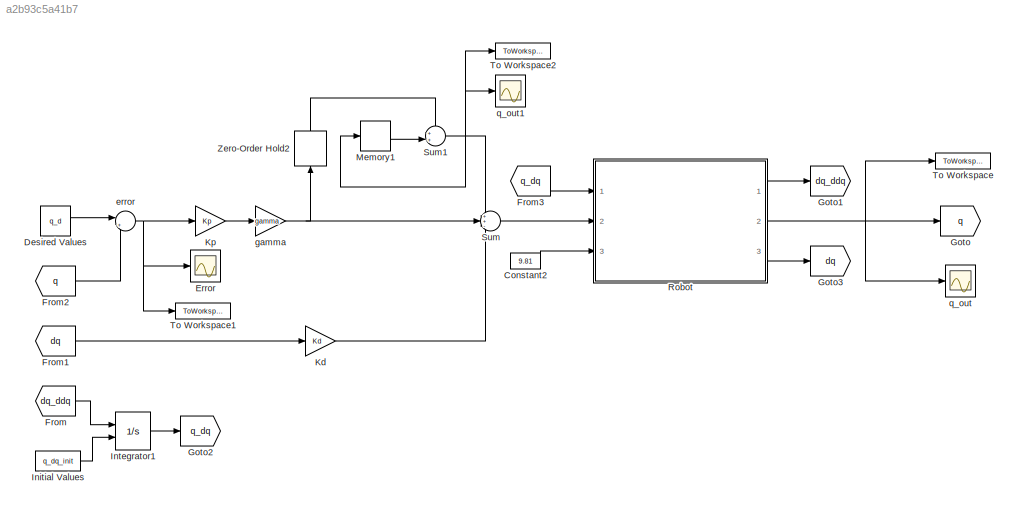
MODEL slx_a2b93c5a41b7
KIND model
CONFIG AbsTol = auto
CONFIG EnableMultiTasking = off
CONFIG FixedStep = auto
CONFIG MaxStep = auto
CONFIG MinStep = auto
CONFIG RelTol = 1e-3
CONFIG SampleTimeConstraint = Unconstrained
CONFIG SolverName = VariableStepAuto
CONFIG StartTime = 0.0
CONFIG StopTime = 15
BLOCK [Constant] Constant2
  Value = 9.81
BLOCK [Constant] Desired Values
  Value = q_d
BLOCK [Scope] Error
  Floating = off
  NumInputPorts = 1
  Ports = [1]
  ScopeSpecificationString = Simulink.scopes.TimeScopeBlockCfg('CurrentConfiguration', extmgr.ConfigurationSet(extmgr.Configuration('Core','General UI',true,'FigureColor',[1 1 1]),extmgr.Configuration('Core','Source UI',true),extmgr.Configuration('Sources','WiredSimulink',true,'DataLoggingVariableName','ScopeData2'),extmgr.Configuration('Visuals','Time Domain',true,'SerializedDisplays',{struct('MinYLimReal','-1.28738','MaxYLi...<+1798ch>
BLOCK [From] From
  GotoTag = dq_ddq
BLOCK [From] From1
  GotoTag = dq
BLOCK [From] From2
  GotoTag = q
BLOCK [From] From3
  GotoTag = q_dq
BLOCK [Goto] Goto
  GotoTag = q
BLOCK [Goto] Goto1
  GotoTag = dq_ddq
BLOCK [Goto] Goto2
  GotoTag = q_dq
BLOCK [Goto] Goto3
  GotoTag = dq
BLOCK [Constant] Initial Values
  Value = q_dq_init
BLOCK [Integrator] Integrator1
  InitialConditionSource = external
  Ports = [2, 1]
BLOCK [Gain] Kd
  Gain = Kd
  Multiplication = Matrix(K*u)
BLOCK [Gain] Kp
  Gain = Kp
  Multiplication = Matrix(K*u)
BLOCK [Memory] Memory1
  InheritSampleTime = on
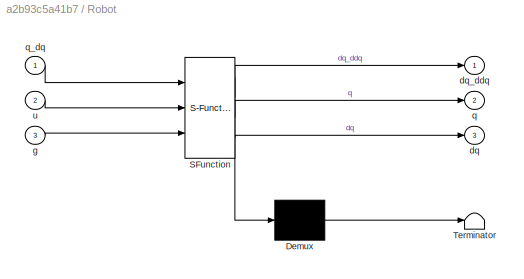
BLOCK [SubSystem] Robot
  ErrorFcn = Stateflow.Translate.translate
  PermitHierarchicalResolution = ExplicitOnly
  Ports = [3, 3]
  RequestExecContextInheritance = off
  SFBlockType = MATLAB Function
  TreatAsAtomicUnit = on
BLOCK [Demux] Robot/ Demux 
  Outputs = 1
  Ports = [1, 1]
BLOCK [S-Function] Robot/ SFunction 
  EnableBusSupport = on
  FunctionName = sf_sfun
  PortCounts = [3 4]
  Ports = [3, 4]
  SFcnIsStateOwnerBlock = off
  SFunctionDeploymentMode = off
  Tag = Stateflow S-Function 2
BLOCK [Terminator] Robot/ Terminator 
BLOCK [Outport] Robot/dq
  Port = 3
BLOCK [Outport] Robot/dq_ddq
BLOCK [Inport] Robot/g
  Port = 3
BLOCK [Outport] Robot/q
  Port = 2
BLOCK [Inport] Robot/q_dq
BLOCK [Inport] Robot/u
  Port = 2
BLOCK [Sum] Sum
  Inputs = ++-
  Ports = [3, 1]
BLOCK [Sum] Sum1
  Inputs = ++|
  Ports = [2, 1]
BLOCK [ToWorkspace] To Workspace
  FixptAsFi = on
  MaxDataPoints = inf
  Ports = [1]
  SampleTime = -1
  VariableName = q
BLOCK [ToWorkspace] To Workspace1
  FixptAsFi = on
  MaxDataPoints = inf
  Ports = [1]
  SampleTime = -1
  VariableName = error
BLOCK [ToWorkspace] To Workspace2
  FixptAsFi = on
  MaxDataPoints = inf
  Ports = [1]
  SampleTime = -1
  VariableName = update
BLOCK [ZeroOrderHold] Zero-Order Hold2
  NameLocation = right
  SampleTime = 2
BLOCK [Sum] error
  Inputs = |+-
  Ports = [2, 1]
BLOCK [Gain] gamma
  Gain = gamma
BLOCK [Scope] q_out
  Floating = off
  NumInputPorts = 1
  Ports = [1]
  ScopeSpecificationString = Simulink.scopes.TimeScopeBlockCfg('CurrentConfiguration', extmgr.ConfigurationSet(extmgr.Configuration('Core','General UI',true,'FigureColor',[1 1 1]),extmgr.Configuration('Core','Source UI',true),extmgr.Configuration('Sources','WiredSimulink',true),extmgr.Configuration('Visuals','Time Domain',true,'SerializedDisplays',{struct('MinYLimReal','1.09546','MaxYLimReal','1.97384','YLabelReal','','MinYLi...<+1769ch>
BLOCK [Scope] q_out1
  Floating = off
  NumInputPorts = 1
  Ports = [1]
  ScopeSpecificationString = Simulink.scopes.TimeScopeBlockCfg('CurrentConfiguration', extmgr.ConfigurationSet(extmgr.Configuration('Core','General UI',true,'FigureColor',[1 1 1]),extmgr.Configuration('Core','Source UI',true),extmgr.Configuration('Sources','WiredSimulink',true,'DataLoggingVariableName','ScopeData1'),extmgr.Configuration('Visuals','Time Domain',true,'SerializedDisplays',{struct('MinYLimReal','-197.03781','MaxY...<+1747ch>
LINE Constant2:1 -> Robot:3
LINE Desired Values:1 -> error:1
LINE From1:1 -> Kd:1
LINE From2:1 -> error:2
LINE From3:1 -> Robot:1
LINE From:1 -> Integrator1:1
LINE Initial Values:1 -> Integrator1:2
LINE Integrator1:1 -> Goto2:1
LINE Kd:1 -> Sum:3
LINE Kp:1 -> gamma:1
LINE Memory1:1 -> Sum1:2
LINE Robot:1 -> Goto1:1
NET Robot:2 -> Goto:1, To Workspace:1, q_out:1
LINE Robot:3 -> Goto3:1
NET Sum1:1 -> Memory1:1, Sum:1, To Workspace2:1, q_out1:1
LINE Sum:1 -> Robot:2
LINE Zero-Order Hold2:1 -> Sum1:1
NET error:1 -> Error:1, Kp:1, To Workspace1:1
NET gamma:1 -> Sum:2, Zero-Order Hold2:1
note: NET lines group one-source signal fan-out (src -> all destinations, sorted); 1:1 wires keep LINE
CHART Robot states=1 transitions=1
  STATE_LABEL 'eML_blk_kernel()'
  STATE_LABEL 'SCRIPT:\nfunction [dq_ddq,q,dq] = fcn(q_dq,u,g)\n    q = q_dq(1:length(q_dq)/2);\n    dq = q_dq(length(q_dq)/2+1:length(q_dq));\n    g_num = g;\n\n\n    M = M_fun(q);\n    C = C_fun(q,dq);\n    G = G_fun(q,g_num);\n\n    ddq = M\\(u - C - G);\n    \n    dq_ddq = [dq;ddq];\n\nend\n'
CHART  states=0 transitions=0
